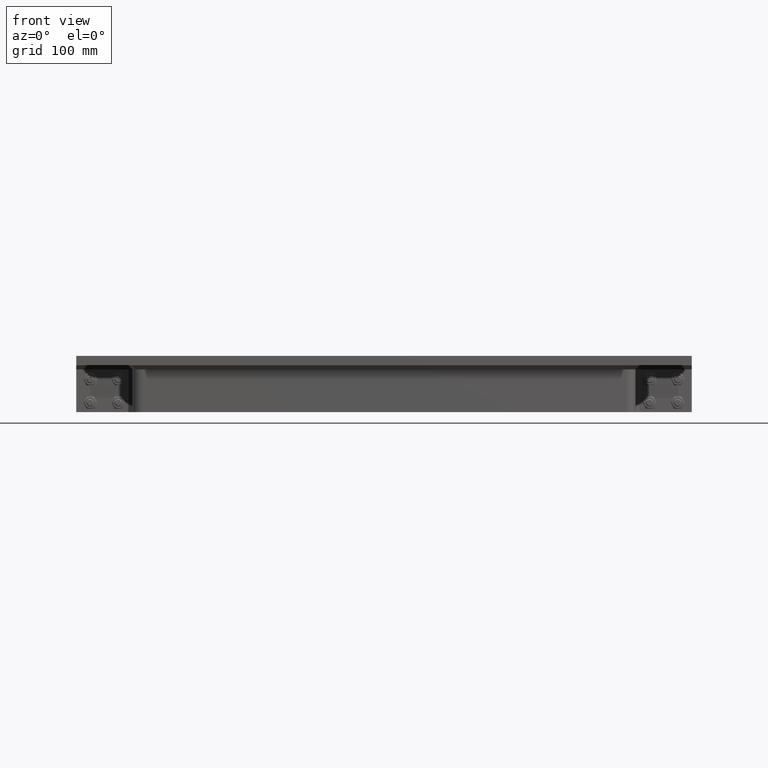
[diagram: clean part render]
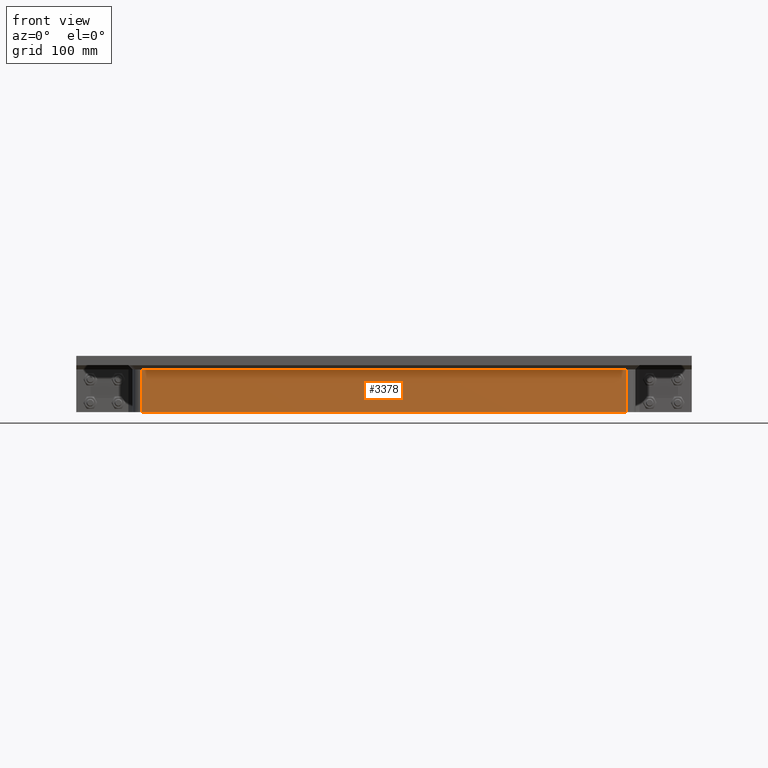
[diagram: same view with one face highlighted and labeled with its STEP entity id]
A machine part, front view. The second image highlights one B-rep face of the part: STEP entity #3378.
In plain terms, the highlighted planar face has unit normal (0, -1, 0).
Its self-contained STEP definition (entity closure, byte-faithful):
#637=FACE_OUTER_BOUND('',#866,.T.);
#866=EDGE_LOOP('',(#2683,#2684,#2685,#2686));
#1067=LINE('',#5145,#1328);
#1129=LINE('',#5352,#1390);
#1175=LINE('',#5467,#1436);
#1179=LINE('',#5479,#1440);
#1328=VECTOR('',#4123,10.);
#1390=VECTOR('',#4319,10.);
#1436=VECTOR('',#4447,10.);
#1440=VECTOR('',#4467,10.);
#1585=VERTEX_POINT('',#5137);
#1587=VERTEX_POINT('',#5143);
#1664=VERTEX_POINT('',#5349);
#1665=VERTEX_POINT('',#5351);
#1884=EDGE_CURVE('',#1587,#1585,#1067,.T.);
#1986=EDGE_CURVE('',#1664,#1665,#1129,.T.);
#2046=EDGE_CURVE('',#1585,#1664,#1175,.T.);
#2050=EDGE_CURVE('',#1587,#1665,#1179,.T.);
#2683=ORIENTED_EDGE('',*,*,#1884,.F.);
#2684=ORIENTED_EDGE('',*,*,#2050,.T.);
#2685=ORIENTED_EDGE('',*,*,#1986,.F.);
#2686=ORIENTED_EDGE('',*,*,#2046,.F.);
#3251=PLANE('',#3833);
#3378=ADVANCED_FACE('',(#637),#3251,.T.);
#3833=AXIS2_PLACEMENT_3D('',#5480,#4468,#4469);
#4123=DIRECTION('',(1.,0.,0.));
#4319=DIRECTION('',(-1.,0.,0.));
#4447=DIRECTION('',(0.,0.,-1.));
#4467=DIRECTION('',(0.,0.,-1.));
#4468=DIRECTION('center_axis',(0.,-1.,0.));
#4469=DIRECTION('ref_axis',(-1.,0.,0.));
#5137=CARTESIAN_POINT('',(259.,-149.,-14.3));
#5143=CARTESIAN_POINT('',(-259.,-149.,-14.3));
#5145=CARTESIAN_POINT('',(129.5,-149.,-14.3));
#5349=CARTESIAN_POINT('',(259.,-149.,-60.));
#5351=CARTESIAN_POINT('',(-259.,-149.,-60.));
#5352=CARTESIAN_POINT('',(-259.,-149.,-60.));
#5467=CARTESIAN_POINT('',(259.,-149.,0.));
#5479=CARTESIAN_POINT('',(-259.,-149.,0.));
#5480=CARTESIAN_POINT('Origin',(259.,-149.,0.));